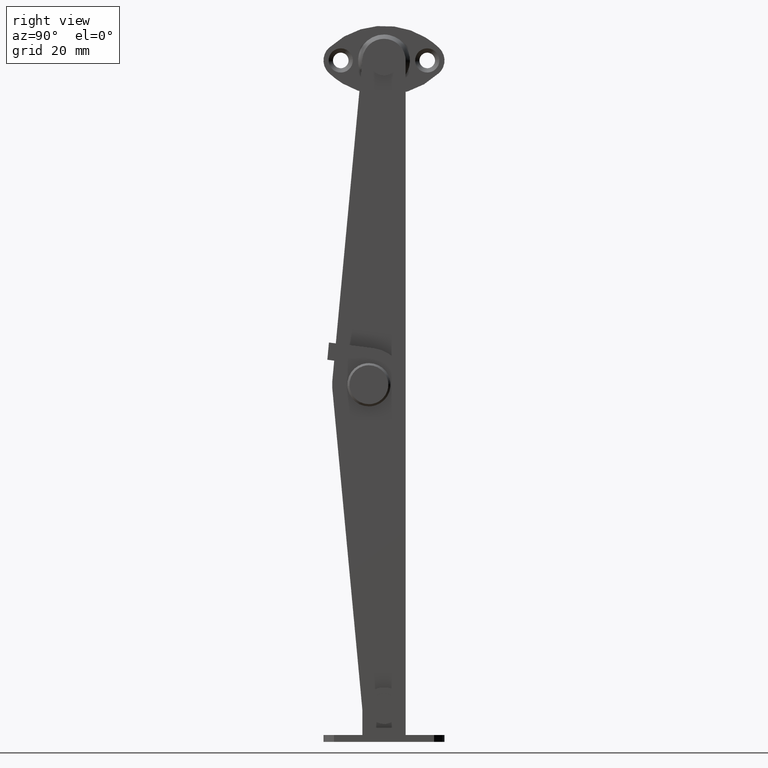
[diagram: clean part render]
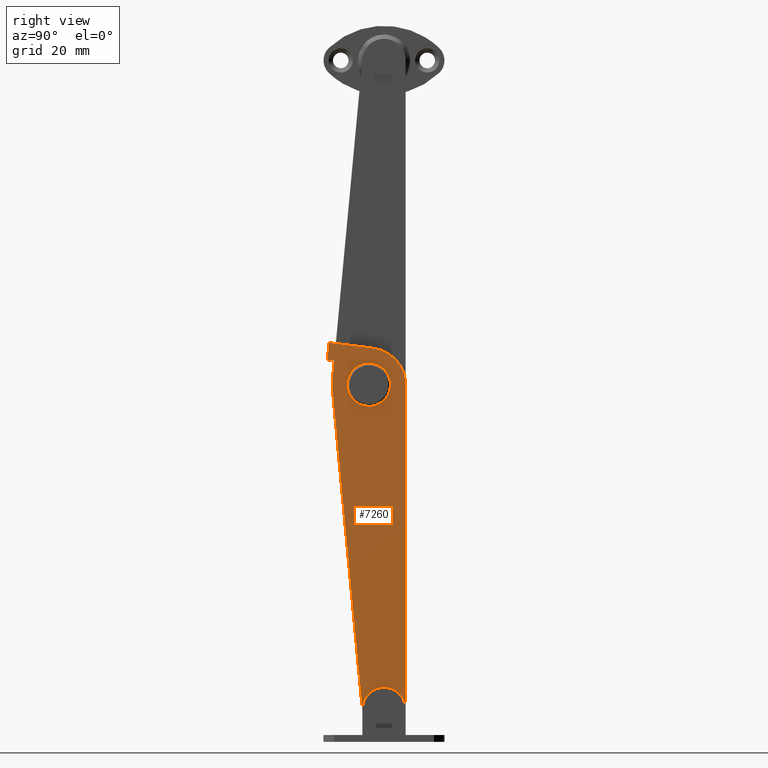
[diagram: same view with one face highlighted and labeled with its STEP entity id]
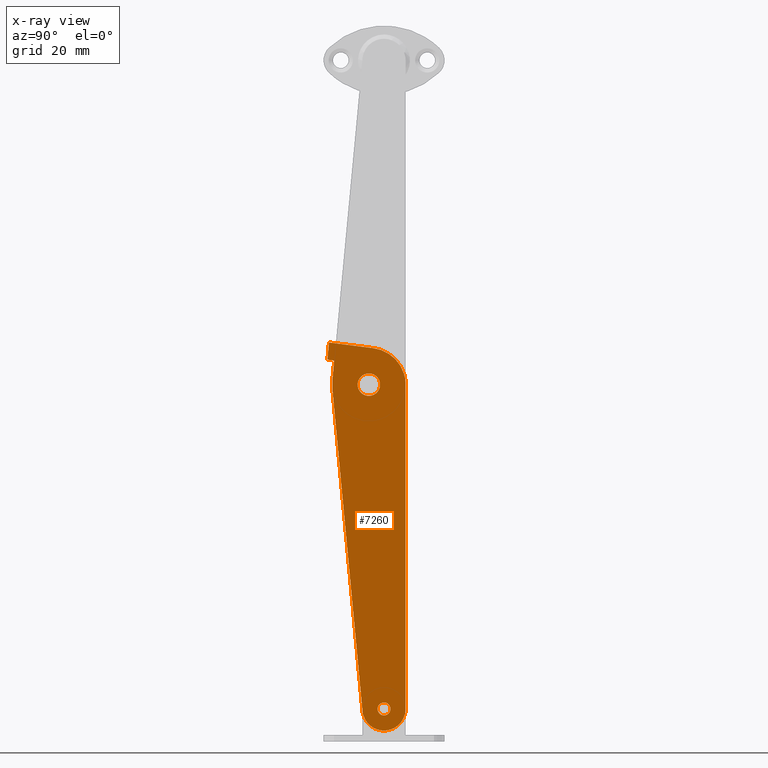
[diagram: x-ray of the same camera — body ghosted, the highlighted face saturated]
A machine part, right view. The second image highlights one B-rep face of the part: STEP entity #7260.
The next image is the same camera in x-ray: the body ghosted, the highlighted face saturated — about 0% of this face is hidden behind the body in this view.
In plain terms, the highlighted face is a freeform B-spline surface patch.
Its self-contained STEP definition (entity closure, byte-faithful):
#6682=CARTESIAN_POINT('',(5.199997000000000,-2.591985067631913,0.203993649835449));
#6683=VERTEX_POINT('',#6682);
#6689=CARTESIAN_POINT('',(5.199997000000000,0.0,-2.600000000000000));
#6690=VERTEX_POINT('',#6689);
#6691=CARTESIAN_POINT('',(5.199997000000000,-2.591985067631913,0.203993649835449));
#6692=CARTESIAN_POINT('',(5.199997000000000,-2.600000000000001,0.102154279167369));
#6693=CARTESIAN_POINT('',(5.199997000000000,-2.600000000000000,0.0));
#6694=CARTESIAN_POINT('',(5.199997000000001,-2.600000000000001,-2.600000000000001));
#6695=CARTESIAN_POINT('',(5.199997000000000,0.0,-2.600000000000000));
#6703=(BOUNDED_CURVE()B_SPLINE_CURVE(2,(#6691,#6692,#6693,#6694,#6695),.UNSPECIFIED.,.F.,.U.)B_SPLINE_CURVE_WITH_KNOTS((3,2,3),(0.736331300508027,0.750000000000000,1.0),.UNSPECIFIED.)CURVE()GEOMETRIC_REPRESENTATION_ITEM()RATIONAL_B_SPLINE_CURVE((0.969723355911493,0.983986122435209,1.0,0.707106781186548,1.0))REPRESENTATION_ITEM(''));
#6704=EDGE_CURVE('',#6683,#6690,#6703,.T.);
#6706=CARTESIAN_POINT('',(5.199997000000000,2.591985067631913,-0.203993649835449));
#6707=VERTEX_POINT('',#6706);
#6708=CARTESIAN_POINT('',(5.199997000000000,0.0,-2.600000000000000));
#6709=CARTESIAN_POINT('',(5.199996999999999,2.403415276557044,-2.600000000000000));
#6710=CARTESIAN_POINT('',(5.199997000000000,2.591985067631913,-0.203993649835450));
#6718=(BOUNDED_CURVE()B_SPLINE_CURVE(2,(#6708,#6709,#6710),.UNSPECIFIED.,.F.,.U.)B_SPLINE_CURVE_WITH_KNOTS((3,3),(0.0,0.236331300508027),.UNSPECIFIED.)CURVE()GEOMETRIC_REPRESENTATION_ITEM()RATIONAL_B_SPLINE_CURVE((1.0,0.723120658751339,0.969723355911493))REPRESENTATION_ITEM(''));
#6719=EDGE_CURVE('',#6690,#6707,#6718,.T.);
#6765=CARTESIAN_POINT('',(5.199997000000000,0.0,2.600000000000000));
#6766=VERTEX_POINT('',#6765);
#6767=CARTESIAN_POINT('',(5.199997000000000,2.591985067631913,-0.203993649835450));
#6768=CARTESIAN_POINT('',(5.199997000000001,2.600000000000001,-0.102154279167369));
#6769=CARTESIAN_POINT('',(5.199997000000000,2.600000000000000,0.0));
#6770=CARTESIAN_POINT('',(5.199997000000001,2.600000000000001,2.600000000000001));
#6771=CARTESIAN_POINT('',(5.199997000000000,0.0,2.600000000000000));
#6779=(BOUNDED_CURVE()B_SPLINE_CURVE(2,(#6767,#6768,#6769,#6770,#6771),.UNSPECIFIED.,.F.,.U.)B_SPLINE_CURVE_WITH_KNOTS((3,2,3),(0.236331300508027,0.250000000000000,0.500000000000000),.UNSPECIFIED.)CURVE()GEOMETRIC_REPRESENTATION_ITEM()RATIONAL_B_SPLINE_CURVE((0.969723355911492,0.983986122435209,1.0,0.707106781186548,1.0))REPRESENTATION_ITEM(''));
#6780=EDGE_CURVE('',#6707,#6766,#6779,.T.);
#6782=CARTESIAN_POINT('',(5.199997000000000,0.0,2.600000000000000));
#6783=CARTESIAN_POINT('',(5.199997000000001,-2.403415276557029,2.600000000000000));
#6784=CARTESIAN_POINT('',(5.199997000000000,-2.591985067631913,0.203993649835449));
#6792=(BOUNDED_CURVE()B_SPLINE_CURVE(2,(#6782,#6783,#6784),.UNSPECIFIED.,.F.,.U.)B_SPLINE_CURVE_WITH_KNOTS((3,3),(0.500000000000000,0.736331300508026),.UNSPECIFIED.)CURVE()GEOMETRIC_REPRESENTATION_ITEM()RATIONAL_B_SPLINE_CURVE((1.0,0.723120658751340,0.969723355911490))REPRESENTATION_ITEM(''));
#6793=EDGE_CURVE('',#6766,#6683,#6792,.T.);
#6864=CARTESIAN_POINT('',(5.199997000000000,2.004626999412135,-74.882311356257958));
#6865=VERTEX_POINT('',#6864);
#6871=CARTESIAN_POINT('',(5.199997000000000,3.500003000000000,-76.500000000000000));
#6872=VERTEX_POINT('',#6871);
#6873=CARTESIAN_POINT('',(5.199997000000000,2.004626999412136,-74.882311356257958));
#6874=CARTESIAN_POINT('',(5.199997000000000,2.000003000000000,-74.941064839337528));
#6875=CARTESIAN_POINT('',(5.199997000000000,2.000003000000000,-75.0));
#6876=CARTESIAN_POINT('',(5.199997000000001,2.000003000000000,-76.500000000000000));
#6877=CARTESIAN_POINT('',(5.199997000000000,3.500003000000000,-76.500000000000000));
#6885=(BOUNDED_CURVE()B_SPLINE_CURVE(2,(#6873,#6874,#6875,#6876,#6877),.UNSPECIFIED.,.F.,.U.)B_SPLINE_CURVE_WITH_KNOTS((3,2,3),(0.736331300598312,0.750000000000000,1.0),.UNSPECIFIED.)CURVE()GEOMETRIC_REPRESENTATION_ITEM()RATIONAL_B_SPLINE_CURVE((0.969723356099911,0.983986122540985,1.0,0.707106781186548,1.0))REPRESENTATION_ITEM(''));
#6886=EDGE_CURVE('',#6865,#6872,#6885,.T.);
#6888=CARTESIAN_POINT('',(5.199997000000000,4.995379000587864,-75.117688643742042));
#6889=VERTEX_POINT('',#6888);
#6890=CARTESIAN_POINT('',(5.199997000000000,3.500003000000000,-76.500000000000000));
#6891=CARTESIAN_POINT('',(5.199997000000000,4.886588737207755,-76.500000000000000));
#6892=CARTESIAN_POINT('',(5.199997000000001,4.995379000587864,-75.117688643742042));
#6900=(BOUNDED_CURVE()B_SPLINE_CURVE(2,(#6890,#6891,#6892),.UNSPECIFIED.,.F.,.U.)B_SPLINE_CURVE_WITH_KNOTS((3,3),(0.0,0.236331300598312),.UNSPECIFIED.)CURVE()GEOMETRIC_REPRESENTATION_ITEM()RATIONAL_B_SPLINE_CURVE((1.0,0.723120658645563,0.969723356099910))REPRESENTATION_ITEM(''));
#6901=EDGE_CURVE('',#6872,#6889,#6900,.T.);
#6947=CARTESIAN_POINT('',(5.199997000000000,3.500003000000000,-73.500000000000000));
#6948=VERTEX_POINT('',#6947);
#6949=CARTESIAN_POINT('',(5.199997000000000,4.995379000587864,-75.117688643742042));
#6950=CARTESIAN_POINT('',(5.199997000000001,5.000003000000000,-75.058935160662472));
#6951=CARTESIAN_POINT('',(5.199997000000000,5.000003000000000,-75.0));
#6952=CARTESIAN_POINT('',(5.199997000000001,5.000003000000000,-73.500000000000000));
#6953=CARTESIAN_POINT('',(5.199997000000000,3.500003000000000,-73.500000000000000));
#6961=(BOUNDED_CURVE()B_SPLINE_CURVE(2,(#6949,#6950,#6951,#6952,#6953),.UNSPECIFIED.,.F.,.U.)B_SPLINE_CURVE_WITH_KNOTS((3,2,3),(0.236331300598312,0.250000000000000,0.500000000000000),.UNSPECIFIED.)CURVE()GEOMETRIC_REPRESENTATION_ITEM()RATIONAL_B_SPLINE_CURVE((0.969723356099910,0.983986122540984,1.0,0.707106781186548,1.0))REPRESENTATION_ITEM(''));
#6962=EDGE_CURVE('',#6889,#6948,#6961,.T.);
#6964=CARTESIAN_POINT('',(5.199997000000000,3.500003000000000,-73.500000000000000));
#6965=CARTESIAN_POINT('',(5.199997000000000,2.113417262792248,-73.500000000000000));
#6966=CARTESIAN_POINT('',(5.199997000000000,2.004626999412135,-74.882311356257958));
#6974=(BOUNDED_CURVE()B_SPLINE_CURVE(2,(#6964,#6965,#6966),.UNSPECIFIED.,.F.,.U.)B_SPLINE_CURVE_WITH_KNOTS((3,3),(0.500000000000000,0.736331300598311),.UNSPECIFIED.)CURVE()GEOMETRIC_REPRESENTATION_ITEM()RATIONAL_B_SPLINE_CURVE((1.0,0.723120658645564,0.969723356099910))REPRESENTATION_ITEM(''));
#6975=EDGE_CURVE('',#6948,#6865,#6974,.T.);
#7152=CARTESIAN_POINT('',(5.199997000000000,9.404271577308633,-84.477077666811056));
#7153=CARTESIAN_POINT('',(5.199997000000000,-10.507954733492930,-84.477077666811056));
#7154=CARTESIAN_POINT('',(5.199997000000000,9.404271577308633,14.239639053047449));
#7155=CARTESIAN_POINT('',(5.199997000000000,-10.507954733492930,14.239639053047449));
#7156=B_SPLINE_SURFACE_WITH_KNOTS('',1,1,((#7152,#7154),(#7153,#7155)),.UNSPECIFIED.,.F.,.F.,.U.,(2,2),(2,2),(0.0,19.912226310801561),(0.0,98.716716719858510),.UNSPECIFIED.);
#7157=CARTESIAN_POINT('',(5.199997000000000,-9.603675999999890,5.771594000000079));
#7158=VERTEX_POINT('',#7157);
#7159=CARTESIAN_POINT('',(5.199997000000000,-9.230962999999999,9.756592999999999));
#7160=VERTEX_POINT('',#7159);
#7161=CARTESIAN_POINT('',(5.199997000000000,-9.603675999999890,5.771594000000079));
#7162=CARTESIAN_POINT('',(5.199997000000000,-9.230962999999999,9.756592999999999));
#7163=QUASI_UNIFORM_CURVE('',1,(#7161,#7162),.UNSPECIFIED.,.F.,.U.);
#7164=EDGE_CURVE('',#7158,#7160,#7163,.T.);
#7165=ORIENTED_EDGE('',*,*,#7164,.F.);
#7166=CARTESIAN_POINT('',(5.199997000000000,-8.016328615115949,5.567545008724150));
#7167=VERTEX_POINT('',#7166);
#7168=CARTESIAN_POINT('',(5.199997000000000,-8.016328615115949,5.567545008724150));
#7169=CARTESIAN_POINT('',(5.199997000000000,-9.603675999999890,5.771594000000079));
#7170=QUASI_UNIFORM_CURVE('',1,(#7168,#7169),.UNSPECIFIED.,.F.,.U.);
#7171=EDGE_CURVE('',#7167,#7158,#7170,.T.);
#7172=ORIENTED_EDGE('',*,*,#7171,.F.);
#7173=CARTESIAN_POINT('',(5.199997000000000,-8.463057776861380,0.791614215073323));
#7174=VERTEX_POINT('',#7173);
#7175=CARTESIAN_POINT('',(5.199997000000000,-8.463057776861380,0.791614215073323));
#7176=CARTESIAN_POINT('',(5.199997000000000,-8.016328615115949,5.567545008724150));
#7177=QUASI_UNIFORM_CURVE('',1,(#7175,#7176),.UNSPECIFIED.,.F.,.U.);
#7178=EDGE_CURVE('',#7174,#7167,#7177,.T.);
#7179=ORIENTED_EDGE('',*,*,#7178,.F.);
#7180=CARTESIAN_POINT('',(5.199997000000000,-8.463058197219521,-0.791609721059230));
#7181=VERTEX_POINT('',#7180);
#7182=CARTESIAN_POINT('',(5.199997000000000,-8.463058197219521,-0.791609721059234));
#7183=CARTESIAN_POINT('',(5.199997000000000,-8.537103268184140,0.000002266666636));
#7184=CARTESIAN_POINT('',(5.199997000000000,-8.463057776861378,0.791614215073320));
#7192=(BOUNDED_CURVE()B_SPLINE_CURVE(2,(#7182,#7183,#7184),.UNSPECIFIED.,.F.,.U.)CURVE()GEOMETRIC_REPRESENTATION_ITEM()QUASI_UNIFORM_CURVE()RATIONAL_B_SPLINE_CURVE((1.0,0.995653880828323,1.0))REPRESENTATION_ITEM(''));
#7193=EDGE_CURVE('',#7181,#7174,#7192,.T.);
#7194=ORIENTED_EDGE('',*,*,#7193,.F.);
#7195=CARTESIAN_POINT('',(5.199997000000000,-1.478266527776090,-75.465652777093595));
#7196=VERTEX_POINT('',#7195);
#7197=CARTESIAN_POINT('',(5.199997000000000,-1.478266527776090,-75.465652777093595));
#7198=CARTESIAN_POINT('',(5.199997000000000,-8.463058197219521,-0.791609721059230));
#7199=QUASI_UNIFORM_CURVE('',1,(#7197,#7198),.UNSPECIFIED.,.F.,.U.);
#7200=EDGE_CURVE('',#7196,#7181,#7199,.T.);
#7201=ORIENTED_EDGE('',*,*,#7200,.F.);
#7202=CARTESIAN_POINT('',(5.199997000000000,8.499954011509310,-74.977866710410396));
#7203=VERTEX_POINT('',#7202);
#7204=CARTESIAN_POINT('',(5.199997000000000,8.499954011509303,-74.977866710410396));
#7205=CARTESIAN_POINT('',(5.199996999999999,8.521125357407858,-79.760512864836883));
#7206=CARTESIAN_POINT('',(5.199997000000000,3.744136843202510,-79.994036310100597));
#7207=CARTESIAN_POINT('',(5.199996999999999,-1.032851671002838,-80.227559755364297));
#7208=CARTESIAN_POINT('',(5.199997000000000,-1.478266527776101,-75.465652777093595));
#7216=(BOUNDED_CURVE()B_SPLINE_CURVE(2,(#7204,#7205,#7206,#7207,#7208),.UNSPECIFIED.,.F.,.U.)B_SPLINE_CURVE_WITH_KNOTS((3,2,3),(0.0,0.500000000000000,1.0),.UNSPECIFIED.)CURVE()GEOMETRIC_REPRESENTATION_ITEM()RATIONAL_B_SPLINE_CURVE((1.0,0.722635770002996,1.0,0.722635770002996,1.0))REPRESENTATION_ITEM(''));
#7217=EDGE_CURVE('',#7203,#7196,#7216,.T.);
#7218=ORIENTED_EDGE('',*,*,#7217,.F.);
#7219=CARTESIAN_POINT('',(5.199997000000000,8.499993005675012,0.010904287039686));
#7220=VERTEX_POINT('',#7219);
#7221=CARTESIAN_POINT('',(5.199997000000000,8.499993005675012,0.010904287039686));
#7222=CARTESIAN_POINT('',(5.199997000000000,8.499954011509310,-74.977866710410396));
#7223=QUASI_UNIFORM_CURVE('',1,(#7221,#7222),.UNSPECIFIED.,.F.,.U.);
#7224=EDGE_CURVE('',#7220,#7203,#7223,.T.);
#7225=ORIENTED_EDGE('',*,*,#7224,.F.);
#7226=CARTESIAN_POINT('',(5.199997000000000,1.083767000000000,8.430636000000000));
#7227=VERTEX_POINT('',#7226);
#7228=CARTESIAN_POINT('',(5.199997000000000,1.083767000000001,8.430635999999991));
#7229=CARTESIAN_POINT('',(5.199996999999999,8.490432091954016,7.478510309329184));
#7230=CARTESIAN_POINT('',(5.199997000000000,8.499993005675012,0.010904287039686));
#7238=(BOUNDED_CURVE()B_SPLINE_CURVE(2,(#7228,#7229,#7230),.UNSPECIFIED.,.F.,.U.)CURVE()GEOMETRIC_REPRESENTATION_ITEM()QUASI_UNIFORM_CURVE()RATIONAL_B_SPLINE_CURVE((1.0,0.751255766099757,1.0))REPRESENTATION_ITEM(''));
#7239=EDGE_CURVE('',#7227,#7220,#7238,.T.);
#7240=ORIENTED_EDGE('',*,*,#7239,.F.);
#7241=CARTESIAN_POINT('',(5.199997000000000,-9.230962999999999,9.756592999999999));
#7242=CARTESIAN_POINT('',(5.199997000000000,1.083767000000000,8.430636000000000));
#7243=QUASI_UNIFORM_CURVE('',1,(#7241,#7242),.UNSPECIFIED.,.F.,.U.);
#7244=EDGE_CURVE('',#7160,#7227,#7243,.T.);
#7245=ORIENTED_EDGE('',*,*,#7244,.F.);
#7246=EDGE_LOOP('',(#7165,#7172,#7179,#7194,#7201,#7218,#7225,#7240,#7245));
#7247=FACE_OUTER_BOUND('',#7246,.T.);
#7248=ORIENTED_EDGE('',*,*,#6975,.F.);
#7249=ORIENTED_EDGE('',*,*,#6962,.F.);
#7250=ORIENTED_EDGE('',*,*,#6901,.F.);
#7251=ORIENTED_EDGE('',*,*,#6886,.F.);
#7252=EDGE_LOOP('',(#7248,#7249,#7250,#7251));
#7253=FACE_BOUND('',#7252,.T.);
#7254=ORIENTED_EDGE('',*,*,#6793,.F.);
#7255=ORIENTED_EDGE('',*,*,#6780,.F.);
#7256=ORIENTED_EDGE('',*,*,#6719,.F.);
#7257=ORIENTED_EDGE('',*,*,#6704,.F.);
#7258=EDGE_LOOP('',(#7254,#7255,#7256,#7257));
#7259=FACE_BOUND('',#7258,.T.);
#7260=ADVANCED_FACE('',(#7247,#7253,#7259),#7156,.F.);